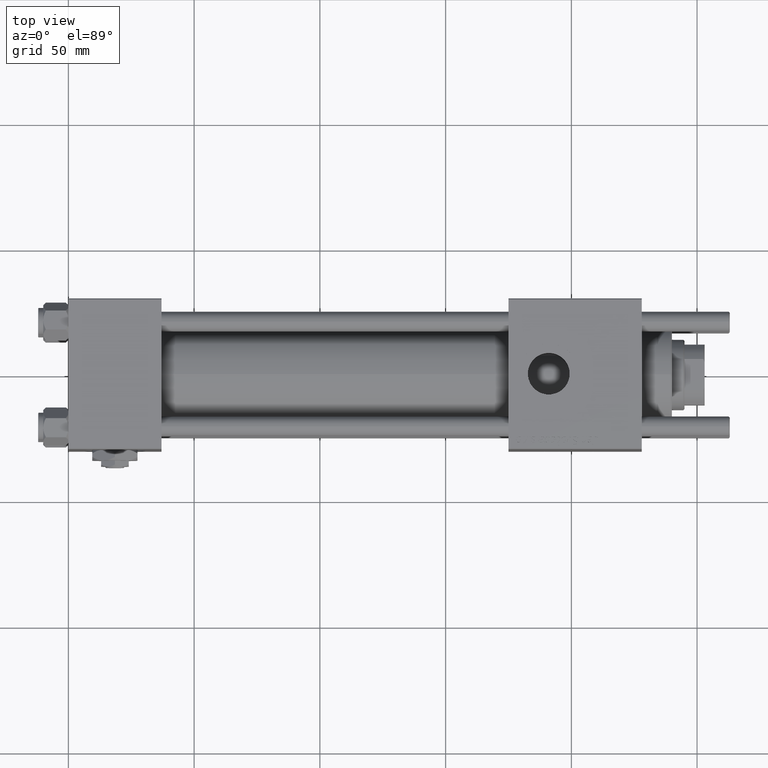
[diagram: clean part render]
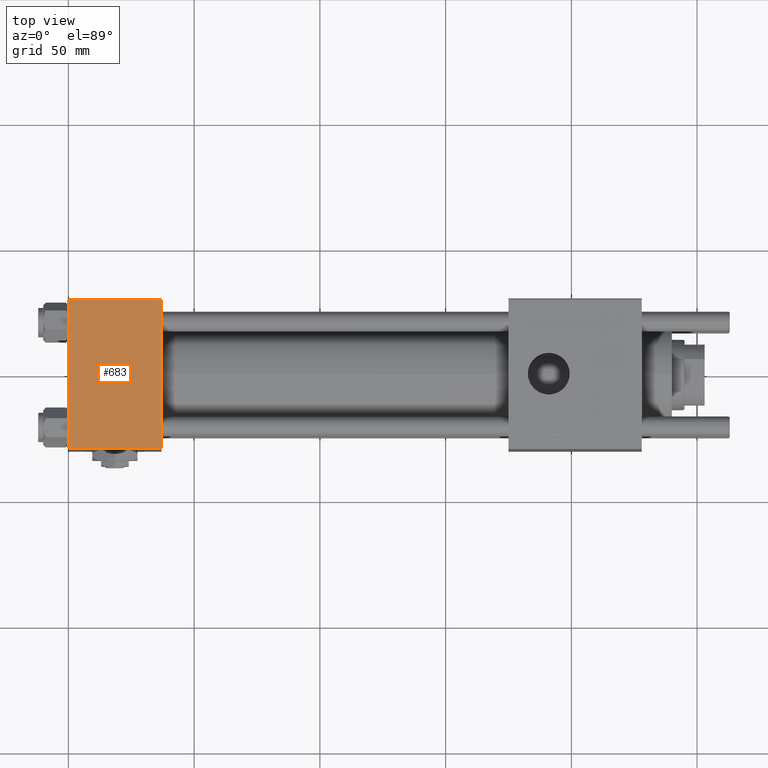
[diagram: same view with one face highlighted and labeled with its STEP entity id]
A machine part, top view. The second image highlights one B-rep face of the part: STEP entity #683.
In plain terms, the highlighted planar face has unit normal (0, 0, -1).
Its self-contained STEP definition (entity closure, byte-faithful):
#593 = DIRECTION ( 'NONE',  ( 0.000000000000000000, 1.000000000000000000, 1.156482317317871725E-16 ) ) ;
#683 = ADVANCED_FACE ( 'NONE', ( #46255 ), #890, .F. ) ;
#890 = PLANE ( 'NONE',  #17118 ) ;
#1582 = ORIENTED_EDGE ( 'NONE', *, *, #57953, .T. ) ;
#2573 = CARTESIAN_POINT ( 'NONE',  ( 37.00000000000000000, -29.50000000000000000, 29.99999999999999289 ) ) ;
#3546 = DIRECTION ( 'NONE',  ( 0.000000000000000000, -1.000000000000000000, -1.156482317317871725E-16 ) ) ;
#4516 = LINE ( 'NONE', #54663, #57164 ) ;
#9654 = CARTESIAN_POINT ( 'NONE',  ( 0.000000000000000000, 29.49999999999999289, 30.00000000000000000 ) ) ;
#13200 = ORIENTED_EDGE ( 'NONE', *, *, #50143, .T. ) ;
#13387 = CARTESIAN_POINT ( 'NONE',  ( 0.000000000000000000, -29.49999999999998579, 29.99999999999999289 ) ) ;
#13933 = VECTOR ( 'NONE', #3546, 1000.000000000000000 ) ;
#14228 = EDGE_CURVE ( 'NONE', #23489, #20390, #32051, .T. ) ;
#14458 = ORIENTED_EDGE ( 'NONE', *, *, #29998, .F. ) ;
#16982 = CARTESIAN_POINT ( 'NONE',  ( 0.000000000000000000, 29.49999999999999289, 30.00000000000000000 ) ) ;
#17118 = AXIS2_PLACEMENT_3D ( 'NONE', #50717, #19096, #593 ) ;
#17465 = VERTEX_POINT ( 'NONE', #32569 ) ;
#19096 = DIRECTION ( 'NONE',  ( 0.000000000000000000, 1.156482317317871725E-16, -1.000000000000000000 ) ) ;
#20390 = VERTEX_POINT ( 'NONE', #16982 ) ;
#23489 = VERTEX_POINT ( 'NONE', #35834 ) ;
#27123 = LINE ( 'NONE', #44430, #13933 ) ;
#27275 = VECTOR ( 'NONE', #46649, 1000.000000000000000 ) ;
#29164 = LINE ( 'NONE', #2573, #40874 ) ;
#29212 = ORIENTED_EDGE ( 'NONE', *, *, #14228, .T. ) ;
#29998 = EDGE_CURVE ( 'NONE', #23489, #17465, #4516, .T. ) ;
#32051 = LINE ( 'NONE', #9654, #27275 ) ;
#32569 = CARTESIAN_POINT ( 'NONE',  ( 37.00000000000000000, -29.49999999999998579, 29.99999999999999289 ) ) ;
#35834 = CARTESIAN_POINT ( 'NONE',  ( 37.00000000000000000, 29.49999999999999289, 30.00000000000000000 ) ) ;
#36462 = DIRECTION ( 'NONE',  ( 0.000000000000000000, -1.000000000000000000, -1.156482317317871725E-16 ) ) ;
#39001 = DIRECTION ( 'NONE',  ( 1.000000000000000000, 0.000000000000000000, 0.000000000000000000 ) ) ;
#40874 = VECTOR ( 'NONE', #39001, 1000.000000000000000 ) ;
#44430 = CARTESIAN_POINT ( 'NONE',  ( 0.000000000000000000, 29.99999999999999289, 30.00000000000000000 ) ) ;
#46255 = FACE_OUTER_BOUND ( 'NONE', #54538, .T. ) ;
#46649 = DIRECTION ( 'NONE',  ( -1.000000000000000000, 0.000000000000000000, 0.000000000000000000 ) ) ;
#46804 = VERTEX_POINT ( 'NONE', #13387 ) ;
#50143 = EDGE_CURVE ( 'NONE', #20390, #46804, #27123, .T. ) ;
#50717 = CARTESIAN_POINT ( 'NONE',  ( 37.00000000000000000, 29.99999999999999289, 30.00000000000000000 ) ) ;
#54538 = EDGE_LOOP ( 'NONE', ( #13200, #1582, #14458, #29212 ) ) ;
#54663 = CARTESIAN_POINT ( 'NONE',  ( 37.00000000000000000, 29.99999999999999289, 30.00000000000000000 ) ) ;
#57164 = VECTOR ( 'NONE', #36462, 1000.000000000000000 ) ;
#57953 = EDGE_CURVE ( 'NONE', #46804, #17465, #29164, .T. ) ;